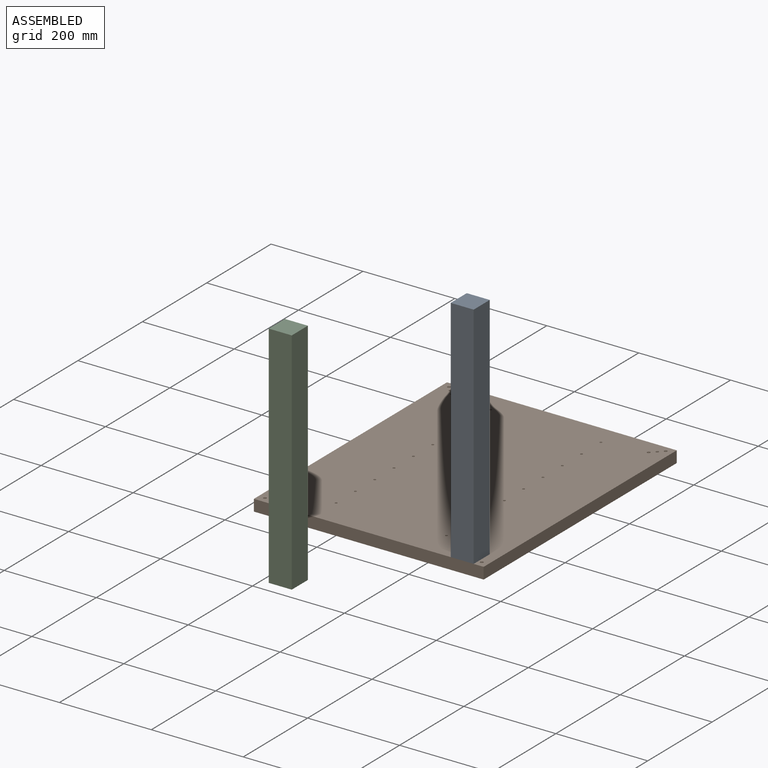
[diagram: assembled view]
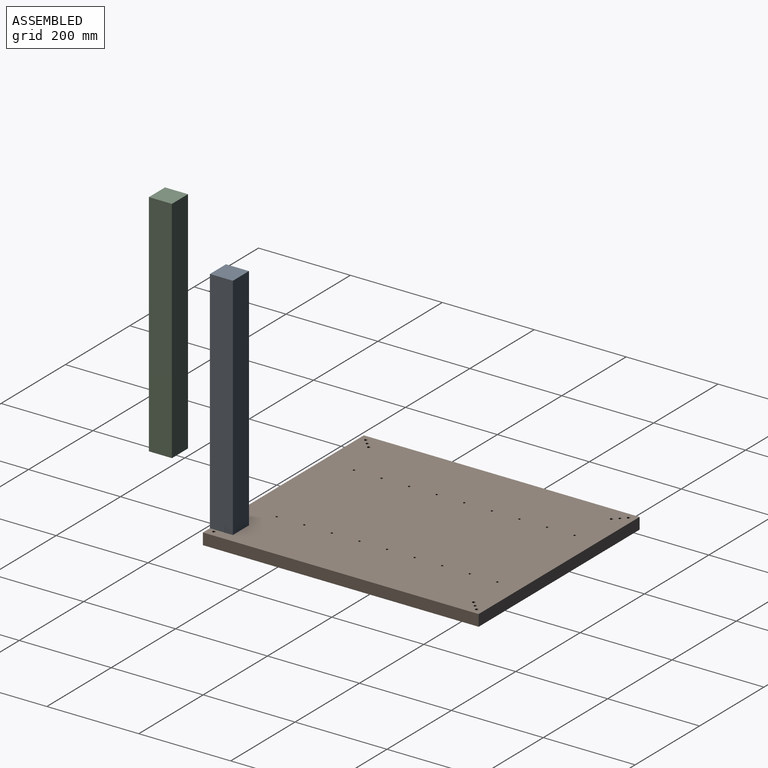
[diagram: assembled view, second angle]
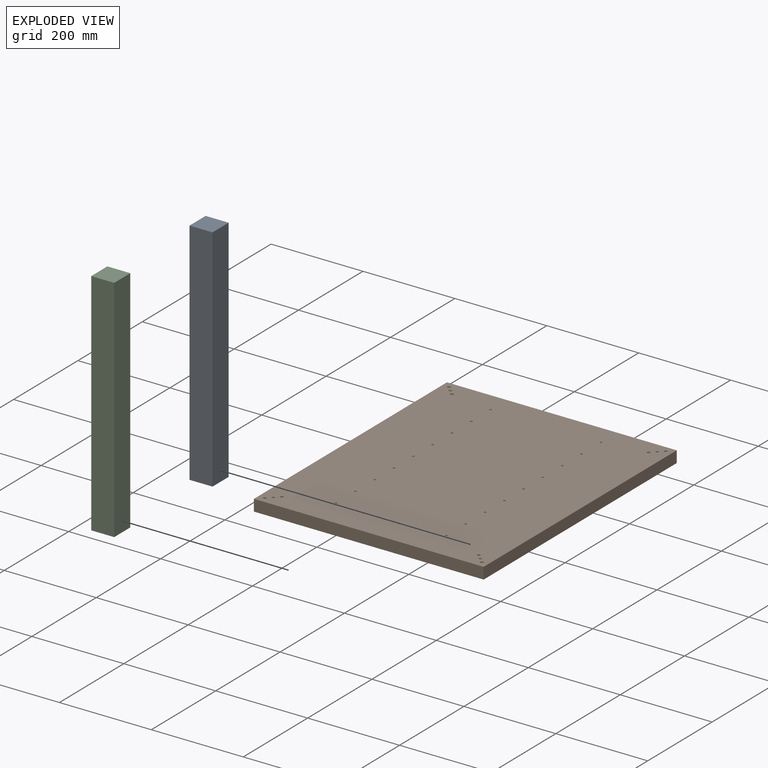
[diagram: exploded view]
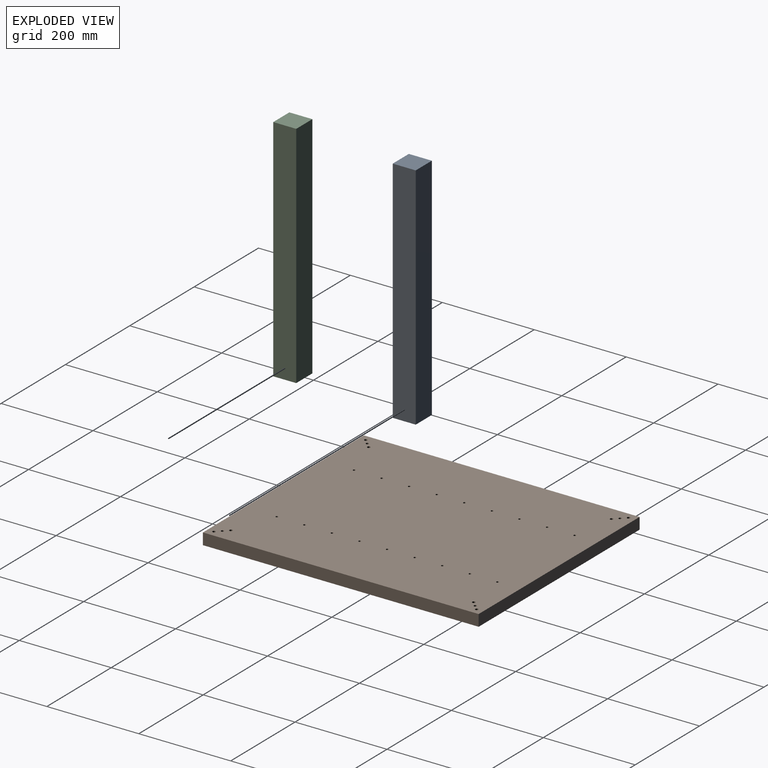
[diagram: exploded view, second angle]
ASSEMBLY  parts=3 mates=2
PART A: 12 faces, bbox 50x50x500 mm
  f0: plane 500x50mm, normal (0,-1,0), area 25000mm2, adj f1,f3,f4,f5
  f1: plane 500x50mm, normal (1,0,0), area 25000mm2, adj f0,f2,f4,f5
  f2: plane 500x50mm, normal (0,1,0), area 25000mm2, adj f1,f3,f4,f5
  f3: plane 500x50mm, normal (-1,0,0), area 25000mm2, adj f0,f2,f4,f5
  f4: plane 50x50mm, normal (0,0,1), area 2500mm2, adj f0,f1,f2,f3
  f5: plane 50x50mm, normal (0,0,-1), area 2399.1mm2, adj f0,f1,f2,f3,f7,f9,f11
  f6: cone r=0mm half-angle=59deg, axis (0,0,-1), area 42.4mm2, adj f7
  f7: cylinder r=3.4mm len=23.75mm, axis (0,0,-1), area 507.4mm2, adj f5,f6
  f8: cone r=0mm half-angle=59deg, axis (0,0,-1), area 42.4mm2, adj f9
  f9: cylinder r=3.4mm len=23.75mm, axis (0,0,-1), area 507.4mm2, adj f5,f8
  f10: cone r=0mm half-angle=59deg, axis (0,0,-1), area 33mm2, adj f11
  f11: cylinder r=3mm len=20mm, axis (0,0,-1), area 377mm2, adj f5,f10
PART B: 52 faces, bbox 500x600x25 mm
  f0: plane 600x500mm, normal (0,0,1), area 299259.8mm2, adj f2,f3,f4,f5,f6,f7,f8,f9
  f1: plane 600x500mm, normal (0,0,-1), area 298773.2mm2, adj f2,f3,f4,f5,f6,f7,f8,f9
  f2: cylinder r=2.5mm len=25mm, axis (0,0,1), area 392.7mm2, adj f0,f1
  f3: cylinder r=2.5mm len=25mm, axis (0,0,1), area 392.7mm2, adj f0,f1
  f4: cylinder r=2.5mm len=25mm, axis (0,0,1), area 392.7mm2, adj f0,f1
  f5: cylinder r=2.5mm len=25mm, axis (0,0,1), area 392.7mm2, adj f0,f1
  f6: cylinder r=2.5mm len=25mm, axis (0,0,1), area 392.7mm2, adj f0,f1
  f7: cylinder r=2.5mm len=25mm, axis (0,0,1), area 392.7mm2, adj f0,f1
  f8: cylinder r=2.5mm len=25mm, axis (0,0,1), area 392.7mm2, adj f0,f1
  f9: plane 600x25mm, normal (1,0,0), area 15000mm2, adj f0,f1,f10,f12
  f10: plane 500x25mm, normal (0,1,0), area 12500mm2, adj f0,f1,f9,f11
  f11: plane 600x25mm, normal (-1,0,0), area 15000mm2, adj f0,f1,f10,f12
  f12: plane 500x25mm, normal (0,-1,0), area 12500mm2, adj f0,f1,f9,f11
  f13: cylinder r=2.5mm len=25mm, axis (0,0,1), area 392.7mm2, adj f0,f1
  f14: cylinder r=2.5mm len=25mm, axis (0,0,1), area 392.7mm2, adj f0,f1
  f15: cylinder r=2.5mm len=25mm, axis (0,0,1), area 392.7mm2, adj f0,f1
  f16: cylinder r=2.5mm len=25mm, axis (0,0,1), area 392.7mm2, adj f0,f1
  f17: cylinder r=2.5mm len=25mm, axis (0,0,1), area 392.7mm2, adj f0,f1
  f18: cylinder r=2.5mm len=25mm, axis (0,0,1), area 392.7mm2, adj f0,f1
  f19: cylinder r=2.5mm len=25mm, axis (0,0,1), area 392.7mm2, adj f0,f1
  f20: cylinder r=2.5mm len=25mm, axis (0,0,1), area 392.7mm2, adj f0,f1
  f21: cylinder r=2.5mm len=25mm, axis (0,0,1), area 392.7mm2, adj f0,f1
  f22: cylinder r=2.5mm len=25mm, axis (0,0,1), area 392.7mm2, adj f0,f1
  f23: cylinder r=2.5mm len=25mm, axis (0,0,1), area 392.7mm2, adj f0,f1
  f24: cylinder r=3.3mm len=18.6mm, axis (0,0,-1), area 385.7mm2, adj f0,f25
  f25: plane 11x11mm, normal (0,0,-1), area 60.8mm2, adj f24,f26
  f26: cylinder r=5.5mm len=11mm, axis (0,0,-1), area 221.2mm2, adj f1,f25
  f27: cylinder r=3.3mm len=18.6mm, axis (0,0,-1), area 385.7mm2, adj f0,f28
  f28: plane 11x11mm, normal (0,0,-1), area 60.8mm2, adj f27,f29
  f29: cylinder r=5.5mm len=11mm, axis (0,0,-1), area 221.2mm2, adj f1,f28
  f30: cylinder r=3mm len=25mm, axis (0,0,-1), area 471.2mm2, adj f0,f1
  f31: cylinder r=3.3mm len=18.6mm, axis (0,0,-1), area 385.7mm2, adj f0,f32
  f32: plane 11x11mm, normal (0,0,-1), area 60.8mm2, adj f31,f33
  f33: cylinder r=5.5mm len=11mm, axis (0,0,-1), area 221.2mm2, adj f1,f32
  f34: cylinder r=3.3mm len=18.6mm, axis (0,0,-1), area 385.7mm2, adj f0,f35
  f35: plane 11x11mm, normal (0,0,-1), area 60.8mm2, adj f34,f36
  f36: cylinder r=5.5mm len=11mm, axis (0,0,-1), area 221.2mm2, adj f1,f35
  f37: cylinder r=3mm len=25mm, axis (0,0,-1), area 471.2mm2, adj f0,f1
  f38: cylinder r=3.3mm len=18.6mm, axis (0,0,-1), area 385.7mm2, adj f0,f39
  f39: plane 11x11mm, normal (0,0,-1), area 60.8mm2, adj f38,f40
  f40: cylinder r=5.5mm len=11mm, axis (0,0,-1), area 221.2mm2, adj f1,f39
  f41: cylinder r=3.3mm len=18.6mm, axis (0,0,-1), area 385.7mm2, adj f0,f42
  f42: plane 11x11mm, normal (0,0,-1), area 60.8mm2, adj f41,f43
  f43: cylinder r=5.5mm len=11mm, axis (0,0,-1), area 221.2mm2, adj f1,f42
  f44: cylinder r=3mm len=25mm, axis (0,0,-1), area 471.2mm2, adj f0,f1
  f45: cylinder r=3.3mm len=18.6mm, axis (0,0,-1), area 385.7mm2, adj f0,f46
  f46: plane 11x11mm, normal (0,0,-1), area 60.8mm2, adj f45,f47
  f47: cylinder r=5.5mm len=11mm, axis (0,0,-1), area 221.2mm2, adj f1,f46
  f48: cylinder r=3.3mm len=18.6mm, axis (0,0,-1), area 385.7mm2, adj f0,f49
  f49: plane 11x11mm, normal (0,0,-1), area 60.8mm2, adj f48,f50
  f50: cylinder r=5.5mm len=11mm, axis (0,0,-1), area 221.2mm2, adj f1,f49
  f51: cylinder r=3mm len=25mm, axis (0,0,-1), area 471.2mm2, adj f0,f1
PART C: same geometry as A
PLACE A t=(366.24,153.54,40.03)mm
PLACE B t=(162.98,428.56,15.03)mm
PLACE C t=(162.98,-121.43,40.03)mm
MATE revolute A.f6 <-> B.f45  axis (0,0,-1) through (377.12,164.42,40.03)mm
MATE parallel A.f10 <-> B.f0  axis (0,0,-1) through (366.24,153.54,40.03)mm
